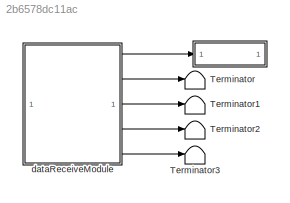
MODEL slx_2b6578dc11ac
KIND model
CONFIG AbsTol = auto
CONFIG EnableMultiTasking = off
CONFIG FixedStep = auto
CONFIG MaxStep = auto
CONFIG MinStep = auto
CONFIG RelTol = 1e-3
CONFIG SampleTimeConstraint = Unconstrained
CONFIG SolverName = VariableStepAuto
CONFIG StartTime = 0.0
CONFIG StopTime = 10.0
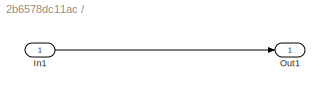
BLOCK [SubSystem]  
BLOCK [Inport]  /In1
BLOCK [Outport]  /Out1
BLOCK [Terminator] Terminator
BLOCK [Terminator] Terminator1
BLOCK [Terminator] Terminator2
BLOCK [Terminator] Terminator3
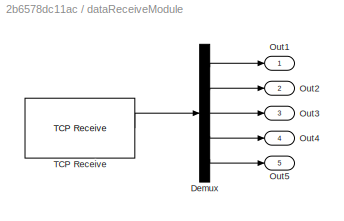
BLOCK [SubSystem] dataReceiveModule
BLOCK [Demux] dataReceiveModule/Demux
  Outputs = 5
BLOCK [Outport] dataReceiveModule/Out1
BLOCK [Outport] dataReceiveModule/Out2
  Port = 2
BLOCK [Outport] dataReceiveModule/Out3
  Port = 3
BLOCK [Outport] dataReceiveModule/Out4
  Port = 4
BLOCK [Outport] dataReceiveModule/Out5
  Port = 5
BLOCK [Reference] dataReceiveModule/TCP Receive  REF=c2838x_M4_lib/TCP Receive
  SourceBlock = c2838x_M4_lib/TCP Receive
  SourceType = codertarget.armM4.blocks.TcpReceive
LINE  /In1:1 ->  /Out1:1
LINE dataReceiveModule/Demux:1 -> dataReceiveModule/Out1:1
LINE dataReceiveModule/Demux:2 -> dataReceiveModule/Out2:1
LINE dataReceiveModule/Demux:3 -> dataReceiveModule/Out3:1
LINE dataReceiveModule/Demux:4 -> dataReceiveModule/Out4:1
LINE dataReceiveModule/Demux:5 -> dataReceiveModule/Out5:1
LINE dataReceiveModule/TCP Receive:1 -> dataReceiveModule/Demux:1
LINE dataReceiveModule:1 ->  :1
LINE dataReceiveModule:2 -> Terminator:1
LINE dataReceiveModule:3 -> Terminator1:1
LINE dataReceiveModule:4 -> Terminator2:1
LINE dataReceiveModule:5 -> Terminator3:1
